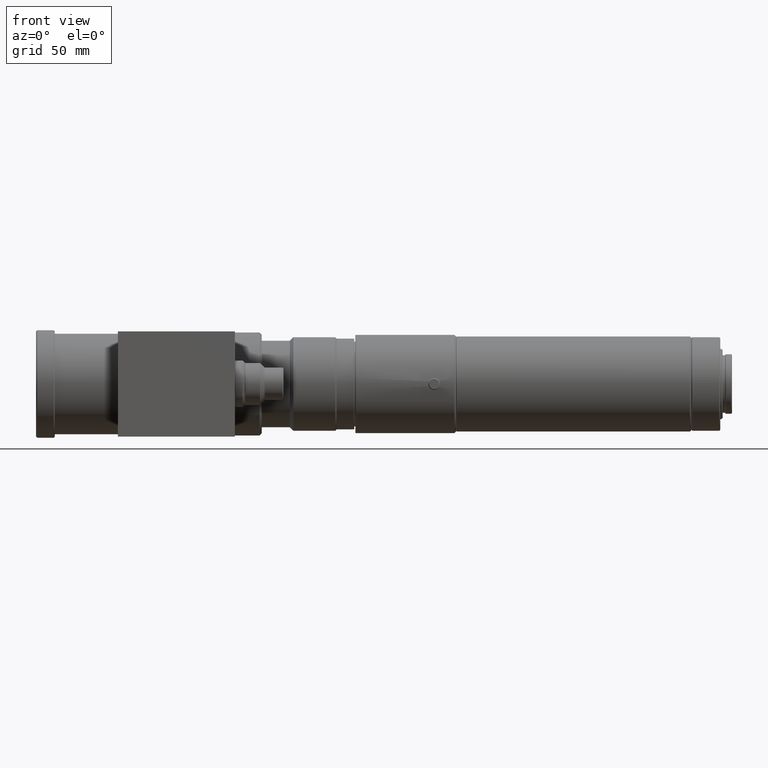
[diagram: clean part render]
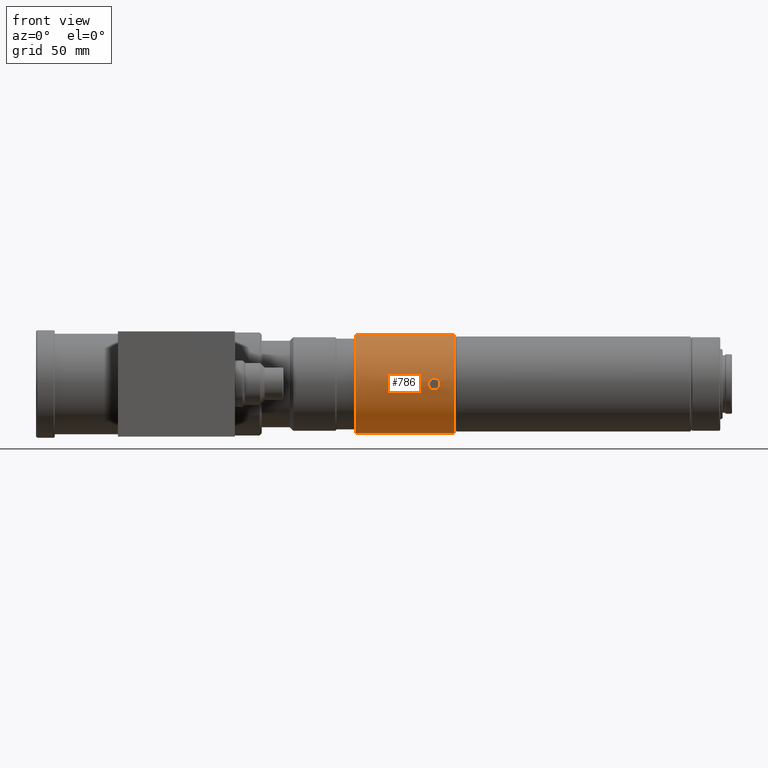
[diagram: same view with one face highlighted and labeled with its STEP entity id]
A machine part, front view. The second image highlights one B-rep face of the part: STEP entity #786.
In plain terms, the highlighted cylindrical surface (partial cylindrical patch) has radius 21 mm, axis along (1, -0, -0).
Its self-contained STEP definition (entity closure, byte-faithful):
#33 = CARTESIAN_POINT ( 'NONE',  ( 169.8555152082289200, -20.98185587210587500, -0.8741908322659174300 ) ) ;
#170 = CARTESIAN_POINT ( 'NONE',  ( 171.3319615143371400, -20.99870493660514000, 0.2624474583987919700 ) ) ;
#212 = ORIENTED_EDGE ( 'NONE', *, *, #4895, .T. ) ;
#454 = DIRECTION ( 'NONE',  ( 1.000000000000000000, -0.0000000000000000000, -0.0000000000000000000 ) ) ;
#468 = CARTESIAN_POINT ( 'NONE',  ( 169.5593975650210400, -20.99118108171990100, -0.6154782037737792600 ) ) ;
#510 = CIRCLE ( 'NONE', #1898, 21.00000000000012400 ) ;
#601 = CARTESIAN_POINT ( 'NONE',  ( 171.3583084269019100, -21.00000221031964300, -0.1301114481422186700 ) ) ;
#621 = CYLINDRICAL_SURFACE ( 'NONE', #2763, 21.00000000000012400 ) ;
#719 = DIRECTION ( 'NONE',  ( 1.000000000000000000, -0.0000000000000000000, -0.0000000000000000000 ) ) ;
#745 = ORIENTED_EDGE ( 'NONE', *, *, #5361, .F. ) ;
#786 = ADVANCED_FACE ( 'NONE', ( #5117, #4150 ), #621, .T. ) ;
#787 = EDGE_CURVE ( 'NONE', #4451, #5174, #1889, .T. ) ;
#892 = CARTESIAN_POINT ( 'NONE',  ( 169.3845256036908000, -20.99870579467689400, -0.2626446749902273100 ) ) ;
#962 = ORIENTED_EDGE ( 'NONE', *, *, #787, .T. ) ;
#1003 = CARTESIAN_POINT ( 'NONE',  ( 170.3582620101894300, -20.97617696340288500, -1.000000000005704300 ) ) ;
#1004 = CARTESIAN_POINT ( 'NONE',  ( 170.3582620101889500, -20.97617696340315500, 1.000000000000000900 ) ) ;
#1024 = CARTESIAN_POINT ( 'NONE',  ( 171.2322088316768100, -20.99431538218383500, -0.5033769977030251300 ) ) ;
#1182 = VECTOR ( 'NONE', #719, 1000.000000000000000 ) ;
#1209 = DIRECTION ( 'NONE',  ( 1.000000000000000000, -0.0000000000000000000, -0.0000000000000000000 ) ) ;
#1256 = VERTEX_POINT ( 'NONE', #1413 ) ;
#1316 = CARTESIAN_POINT ( 'NONE',  ( 170.2277517311636900, -20.97617696340314500, -1.000000000000113200 ) ) ;
#1334 = CARTESIAN_POINT ( 'NONE',  ( 169.3581533410705600, -21.00000517471827500, 0.1310937064306388300 ) ) ;
#1413 = CARTESIAN_POINT ( 'NONE',  ( 136.8582620101891800, 2.571758278209456600E-015, 21.00000000000012400 ) ) ;
#1463 = CARTESIAN_POINT ( 'NONE',  ( 170.9721908439482800, -20.98495191128043700, -0.8003266844573931900 ) ) ;
#1760 = CARTESIAN_POINT ( 'NONE',  ( 169.4843234279919400, -20.99431490651777200, 0.5034395038101368000 ) ) ;
#1769 = B_SPLINE_CURVE_WITH_KNOTS ( 'NONE', 3,
 ( #5498, #1316, #2588, #33, #3008, #468, #3434, #892, #3868, #1334, #4289, #1760, #4715, #2189, #5121, #2606 ),
 .UNSPECIFIED., .F., .F.,
 ( 4, 2, 2, 2, 2, 2, 2, 4 ),
 ( 0.003126898502699004300, 0.003517671821793365100, 0.003908445140887725900, 0.004299218459982086800, 0.004689991779076447600, 0.005080765098170808400, 0.005471538417265169200, 0.006253085055453832700 ),
 .UNSPECIFIED. ) ;
#1848 = CARTESIAN_POINT ( 'NONE',  ( 178.9582620101892900, 2.571758278209456600E-015, -21.00000000000012400 ) ) ;
#1868 = CARTESIAN_POINT ( 'NONE',  ( 170.6201143343864400, -20.97746181532382100, 0.9739720050704437900 ) ) ;
#1883 = CARTESIAN_POINT ( 'NONE',  ( 170.6197255287371800, -20.97745650097919100, -0.9740857345446382000 ) ) ;
#1889 = LINE ( 'NONE', #5410, #2881 ) ;
#1898 = AXIS2_PLACEMENT_3D ( 'NONE', #2995, #454, #3419 ) ;
#2189 = CARTESIAN_POINT ( 'NONE',  ( 169.8351002463214500, -20.98189021547509700, 0.8913124560614832400 ) ) ;
#2291 = CARTESIAN_POINT ( 'NONE',  ( 170.9732607784267500, -20.98498810101645200, 0.7992482625266647000 ) ) ;
#2316 = CARTESIAN_POINT ( 'NONE',  ( 170.3582620101894300, -20.97617696340288500, -1.000000000005704300 ) ) ;
#2481 = CARTESIAN_POINT ( 'NONE',  ( 136.8582620101891800, 0.0000000000000000000, -21.00000000000012400 ) ) ;
#2588 = CARTESIAN_POINT ( 'NONE',  ( 170.0962085472208400, -20.97746871069996600, -0.9738028243157101900 ) ) ;
#2606 = CARTESIAN_POINT ( 'NONE',  ( 170.3582620101889500, -20.97617696340315500, 1.000000000000000900 ) ) ;
#2713 = CARTESIAN_POINT ( 'NONE',  ( 171.2322314072918300, -20.99431686903146500, 0.5031370446768808100 ) ) ;
#2763 = AXIS2_PLACEMENT_3D ( 'NONE', #4025, #4049, #5262 ) ;
#2861 = VERTEX_POINT ( 'NONE', #1003 ) ;
#2880 = DIRECTION ( 'NONE',  ( 1.000000000000000000, -0.0000000000000000000, -0.0000000000000000000 ) ) ;
#2881 = VECTOR ( 'NONE', #2880, 1000.000000000000000 ) ;
#2988 = VERTEX_POINT ( 'NONE', #4077 ) ;
#2995 = CARTESIAN_POINT ( 'NONE',  ( 178.9582620101892900, 0.0000000000000000000, 0.0000000000000000000 ) ) ;
#3008 = CARTESIAN_POINT ( 'NONE',  ( 169.7439060265097900, -20.98496919412758600, -0.7997277951851972100 ) ) ;
#3099 = EDGE_LOOP ( 'NONE', ( #3735, #3473 ) ) ;
#3139 = CARTESIAN_POINT ( 'NONE',  ( 171.3582154665562000, -20.99999778363680000, 0.1308239642318249100 ) ) ;
#3259 = CARTESIAN_POINT ( 'NONE',  ( 291.8642620101889500, 2.571758278209456600E-015, 21.00000000000012400 ) ) ;
#3419 = DIRECTION ( 'NONE',  ( 0.0000000000000000000, 0.0000000000000000000, -1.000000000000000000 ) ) ;
#3434 = CARTESIAN_POINT ( 'NONE',  ( 169.4849729596112400, -20.99428770470471100, -0.5044908807715855500 ) ) ;
#3473 = ORIENTED_EDGE ( 'NONE', *, *, #5042, .T. ) ;
#3546 = CARTESIAN_POINT ( 'NONE',  ( 170.4904267689092300, -20.97617696340314800, 1.000000000000001100 ) ) ;
#3568 = CARTESIAN_POINT ( 'NONE',  ( 171.3323994643316400, -20.99872470173785300, -0.2612042668903055700 ) ) ;
#3588 = ORIENTED_EDGE ( 'NONE', *, *, #4589, .F. ) ;
#3675 = EDGE_CURVE ( 'NONE', #4864, #2861, #5277, .T. ) ;
#3735 = ORIENTED_EDGE ( 'NONE', *, *, #3675, .T. ) ;
#3745 = CARTESIAN_POINT ( 'NONE',  ( 136.8582620101891800, 0.0000000000000000000, 0.0000000000000000000 ) ) ;
#3868 = CARTESIAN_POINT ( 'NONE',  ( 169.3583713621412700, -20.99999479276606000, -0.1327463817147163400 ) ) ;
#3997 = CARTESIAN_POINT ( 'NONE',  ( 171.1588647536136700, -20.99124252774501200, -0.6135687915764811400 ) ) ;
#4025 = CARTESIAN_POINT ( 'NONE',  ( 291.8642620101889500, 0.0000000000000000000, 0.0000000000000000000 ) ) ;
#4049 = DIRECTION ( 'NONE',  ( 1.000000000000000000, -0.0000000000000000000, -0.0000000000000000000 ) ) ;
#4077 = CARTESIAN_POINT ( 'NONE',  ( 178.9582620101892900, 0.0000000000000000000, 21.00000000000012400 ) ) ;
#4107 = CIRCLE ( 'NONE', #4345, 21.00000000000012400 ) ;
#4150 = FACE_BOUND ( 'NONE', #3099, .T. ) ;
#4170 = DIRECTION ( 'NONE',  ( 0.0000000000000000000, 0.0000000000000000000, -1.000000000000000000 ) ) ;
#4289 = CARTESIAN_POINT ( 'NONE',  ( 169.3840214188442400, -20.99872935390152800, 0.2609123408836300800 ) ) ;
#4345 = AXIS2_PLACEMENT_3D ( 'NONE', #3745, #1209, #4170 ) ;
#4414 = CARTESIAN_POINT ( 'NONE',  ( 170.8621038025797200, -20.98187729043094800, -0.8736988256919399100 ) ) ;
#4451 = VERTEX_POINT ( 'NONE', #2481 ) ;
#4560 = LINE ( 'NONE', #3259, #1182 ) ;
#4561 = CARTESIAN_POINT ( 'NONE',  ( 170.3582620101889500, -20.97617696340315500, 1.000000000000000900 ) ) ;
#4589 = EDGE_CURVE ( 'NONE', #2988, #5174, #510, .T. ) ;
#4715 = CARTESIAN_POINT ( 'NONE',  ( 169.5584330369420100, -20.99121795137715200, 0.6142537300909195500 ) ) ;
#4825 = CARTESIAN_POINT ( 'NONE',  ( 170.8623317041064000, -20.98188322887169100, 0.8735570101730730800 ) ) ;
#4842 = CARTESIAN_POINT ( 'NONE',  ( 170.4888020113020000, -20.97617696340316200, -0.9999999999998885300 ) ) ;
#4864 = VERTEX_POINT ( 'NONE', #4561 ) ;
#4895 = EDGE_CURVE ( 'NONE', #1256, #4451, #4107, .T. ) ;
#5042 = EDGE_CURVE ( 'NONE', #2861, #4864, #1769, .T. ) ;
#5052 = EDGE_LOOP ( 'NONE', ( #745, #212, #962, #3588 ) ) ;
#5117 = FACE_OUTER_BOUND ( 'NONE', #5052, .T. ) ;
#5121 = CARTESIAN_POINT ( 'NONE',  ( 170.0939926767885900, -20.97617696340315200, 1.000000000000000900 ) ) ;
#5174 = VERTEX_POINT ( 'NONE', #1848 ) ;
#5236 = CARTESIAN_POINT ( 'NONE',  ( 171.1577334900197800, -20.99120427135926200, 0.6147085675528970400 ) ) ;
#5262 = DIRECTION ( 'NONE',  ( 0.0000000000000000000, 0.0000000000000000000, -1.000000000000000000 ) ) ;
#5277 = B_SPLINE_CURVE_WITH_KNOTS ( 'NONE', 3,
 ( #1004, #3546, #1868, #4825, #2291, #5236, #2713, #170, #3139, #601, #3568, #1024, #3997, #1463, #4414, #1883, #4842, #2316 ),
 .UNSPECIFIED., .F., .F.,
 ( 4, 2, 2, 2, 2, 2, 2, 2, 4 ),
 ( 0.0000000000000000000, 0.0003908623128373756500, 0.0007817246256747512900, 0.001172586938512126900, 0.001563449251349502200, 0.001954311564186877600, 0.002345173877024253000, 0.002736036189861628900, 0.003126898502699004300 ),
 .UNSPECIFIED. ) ;
#5361 = EDGE_CURVE ( 'NONE', #1256, #2988, #4560, .T. ) ;
#5410 = CARTESIAN_POINT ( 'NONE',  ( 291.8642620101889500, 0.0000000000000000000, -21.00000000000012400 ) ) ;
#5498 = CARTESIAN_POINT ( 'NONE',  ( 170.3582620101894300, -20.97617696340288500, -1.000000000005704300 ) ) ;